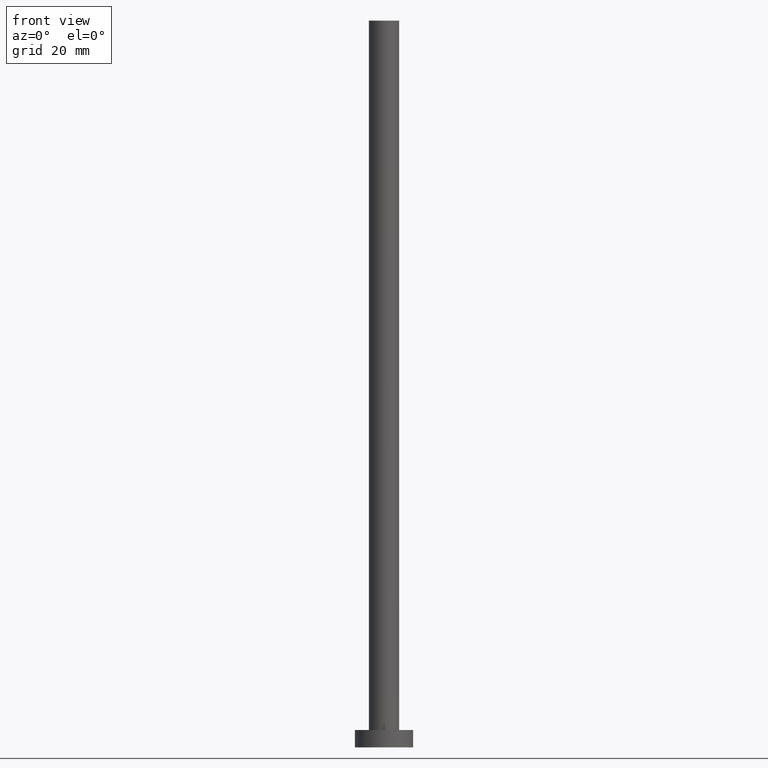
[diagram: clean part render]
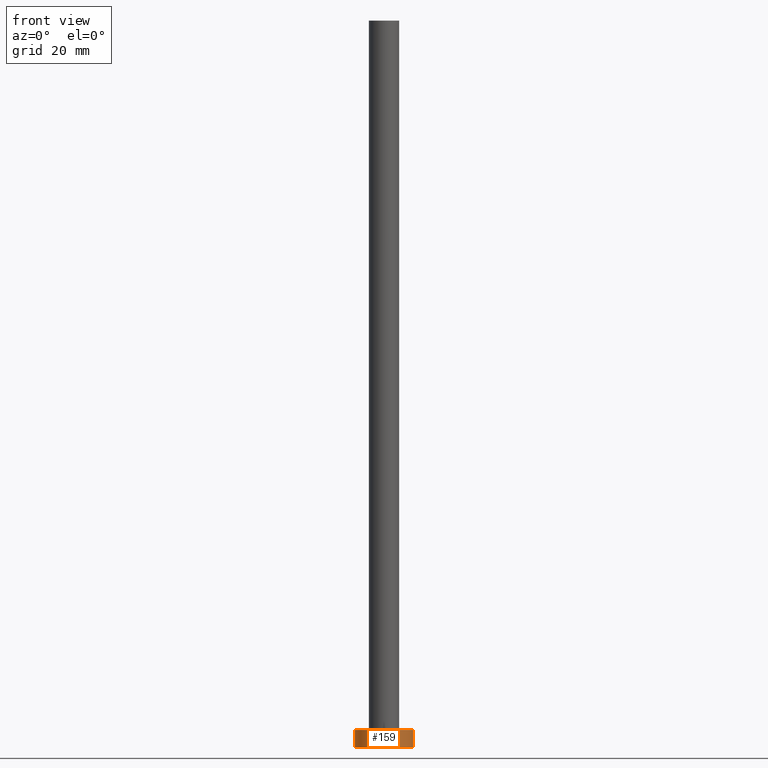
[diagram: same view with one face highlighted and labeled with its STEP entity id]
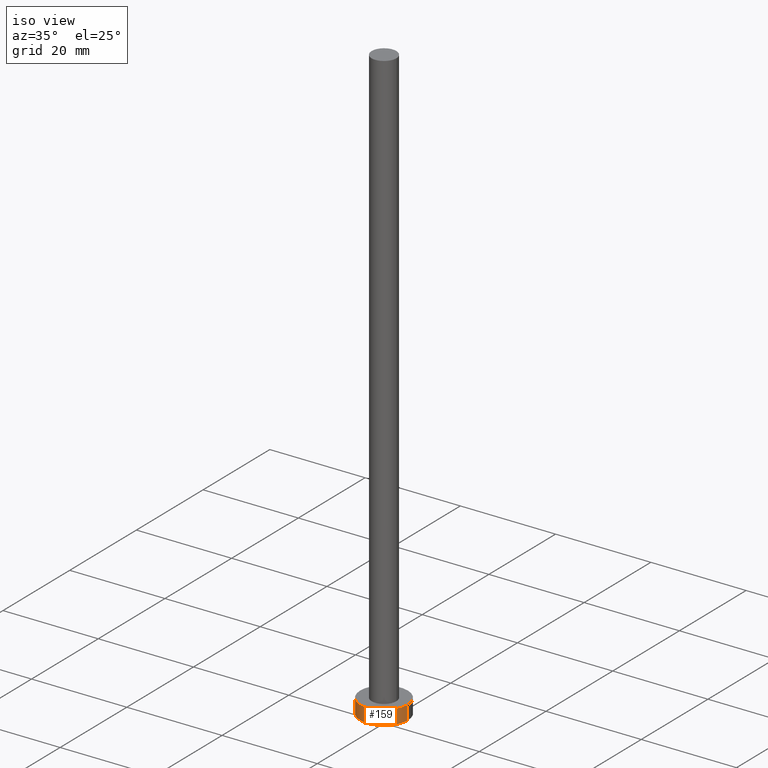
[diagram: same view with one face highlighted and labeled with its STEP entity id]
A machine part, front view. The second image highlights one B-rep face of the part: STEP entity #159.
A second angle (iso view) of the same face is appended — the face is thin or edge-on in the first view.
In plain terms, the highlighted cylindrical surface (edge-blend (fillet) strip) has radius 5 mm, axis along (-0, -0, -1).
Its self-contained STEP definition (entity closure, byte-faithful):
#14 = VERTEX_POINT ( 'NONE', #81 ) ;
#19 = CYLINDRICAL_SURFACE ( 'NONE', #249, 5.000000000000000000 ) ;
#22 = DIRECTION ( 'NONE',  ( 0.000000000000000000, 0.000000000000000000, 1.000000000000000000 ) ) ;
#24 = VERTEX_POINT ( 'NONE', #225 ) ;
#28 = EDGE_CURVE ( 'NONE', #24, #14, #30, .T. ) ;
#30 = LINE ( 'NONE', #122, #208 ) ;
#43 = DIRECTION ( 'NONE',  ( 0.000000000000000000, 0.000000000000000000, 1.000000000000000000 ) ) ;
#46 = DIRECTION ( 'NONE',  ( 1.000000000000000000, 0.000000000000000000, 0.000000000000000000 ) ) ;
#48 = ORIENTED_EDGE ( 'NONE', *, *, #100, .T. ) ;
#49 = AXIS2_PLACEMENT_3D ( 'NONE', #157, #43, #46 ) ;
#58 = DIRECTION ( 'NONE',  ( 1.000000000000000000, 0.000000000000000000, 0.000000000000000000 ) ) ;
#60 = FACE_OUTER_BOUND ( 'NONE', #93, .T. ) ;
#66 = EDGE_CURVE ( 'NONE', #132, #24, #148, .T. ) ;
#81 = CARTESIAN_POINT ( 'NONE',  ( 5.000000000000000000, 6.123233995736766282E-16, 0.000000000000000000 ) ) ;
#82 = DIRECTION ( 'NONE',  ( -0.000000000000000000, -0.000000000000000000, -1.000000000000000000 ) ) ;
#86 = CARTESIAN_POINT ( 'NONE',  ( -5.000000000000000000, 0.000000000000000000, 3.000000000000000000 ) ) ;
#90 = AXIS2_PLACEMENT_3D ( 'NONE', #149, #22, #58 ) ;
#92 = CIRCLE ( 'NONE', #90, 5.000000000000000000 ) ;
#93 = EDGE_LOOP ( 'NONE', ( #245, #227, #48, #185 ) ) ;
#100 = EDGE_CURVE ( 'NONE', #132, #195, #129, .T. ) ;
#102 = CARTESIAN_POINT ( 'NONE',  ( -5.000000000000000000, 0.000000000000000000, 3.000000000000000000 ) ) ;
#109 = CARTESIAN_POINT ( 'NONE',  ( -5.000000000000000000, 0.000000000000000000, 0.000000000000000000 ) ) ;
#120 = CARTESIAN_POINT ( 'NONE',  ( 0.000000000000000000, 0.000000000000000000, 3.000000000000000000 ) ) ;
#122 = CARTESIAN_POINT ( 'NONE',  ( 5.000000000000000000, 6.123233995736766282E-16, 3.000000000000000000 ) ) ;
#125 = EDGE_CURVE ( 'NONE', #195, #14, #92, .T. ) ;
#129 = LINE ( 'NONE', #102, #191 ) ;
#132 = VERTEX_POINT ( 'NONE', #86 ) ;
#148 = CIRCLE ( 'NONE', #49, 5.000000000000000000 ) ;
#149 = CARTESIAN_POINT ( 'NONE',  ( 0.000000000000000000, 0.000000000000000000, 0.000000000000000000 ) ) ;
#157 = CARTESIAN_POINT ( 'NONE',  ( 0.000000000000000000, 0.000000000000000000, 3.000000000000000000 ) ) ;
#159 = ADVANCED_FACE ( 'NONE', ( #60 ), #19, .T. ) ;
#185 = ORIENTED_EDGE ( 'NONE', *, *, #125, .T. ) ;
#191 = VECTOR ( 'NONE', #238, 1000.000000000000000 ) ;
#195 = VERTEX_POINT ( 'NONE', #109 ) ;
#205 = DIRECTION ( 'NONE',  ( -1.000000000000000000, 0.000000000000000000, 0.000000000000000000 ) ) ;
#208 = VECTOR ( 'NONE', #82, 1000.000000000000000 ) ;
#225 = CARTESIAN_POINT ( 'NONE',  ( 5.000000000000000000, 6.123233995736766282E-16, 3.000000000000000000 ) ) ;
#227 = ORIENTED_EDGE ( 'NONE', *, *, #66, .F. ) ;
#238 = DIRECTION ( 'NONE',  ( -0.000000000000000000, -0.000000000000000000, -1.000000000000000000 ) ) ;
#245 = ORIENTED_EDGE ( 'NONE', *, *, #28, .F. ) ;
#248 = DIRECTION ( 'NONE',  ( -0.000000000000000000, -0.000000000000000000, -1.000000000000000000 ) ) ;
#249 = AXIS2_PLACEMENT_3D ( 'NONE', #120, #248, #205 ) ;